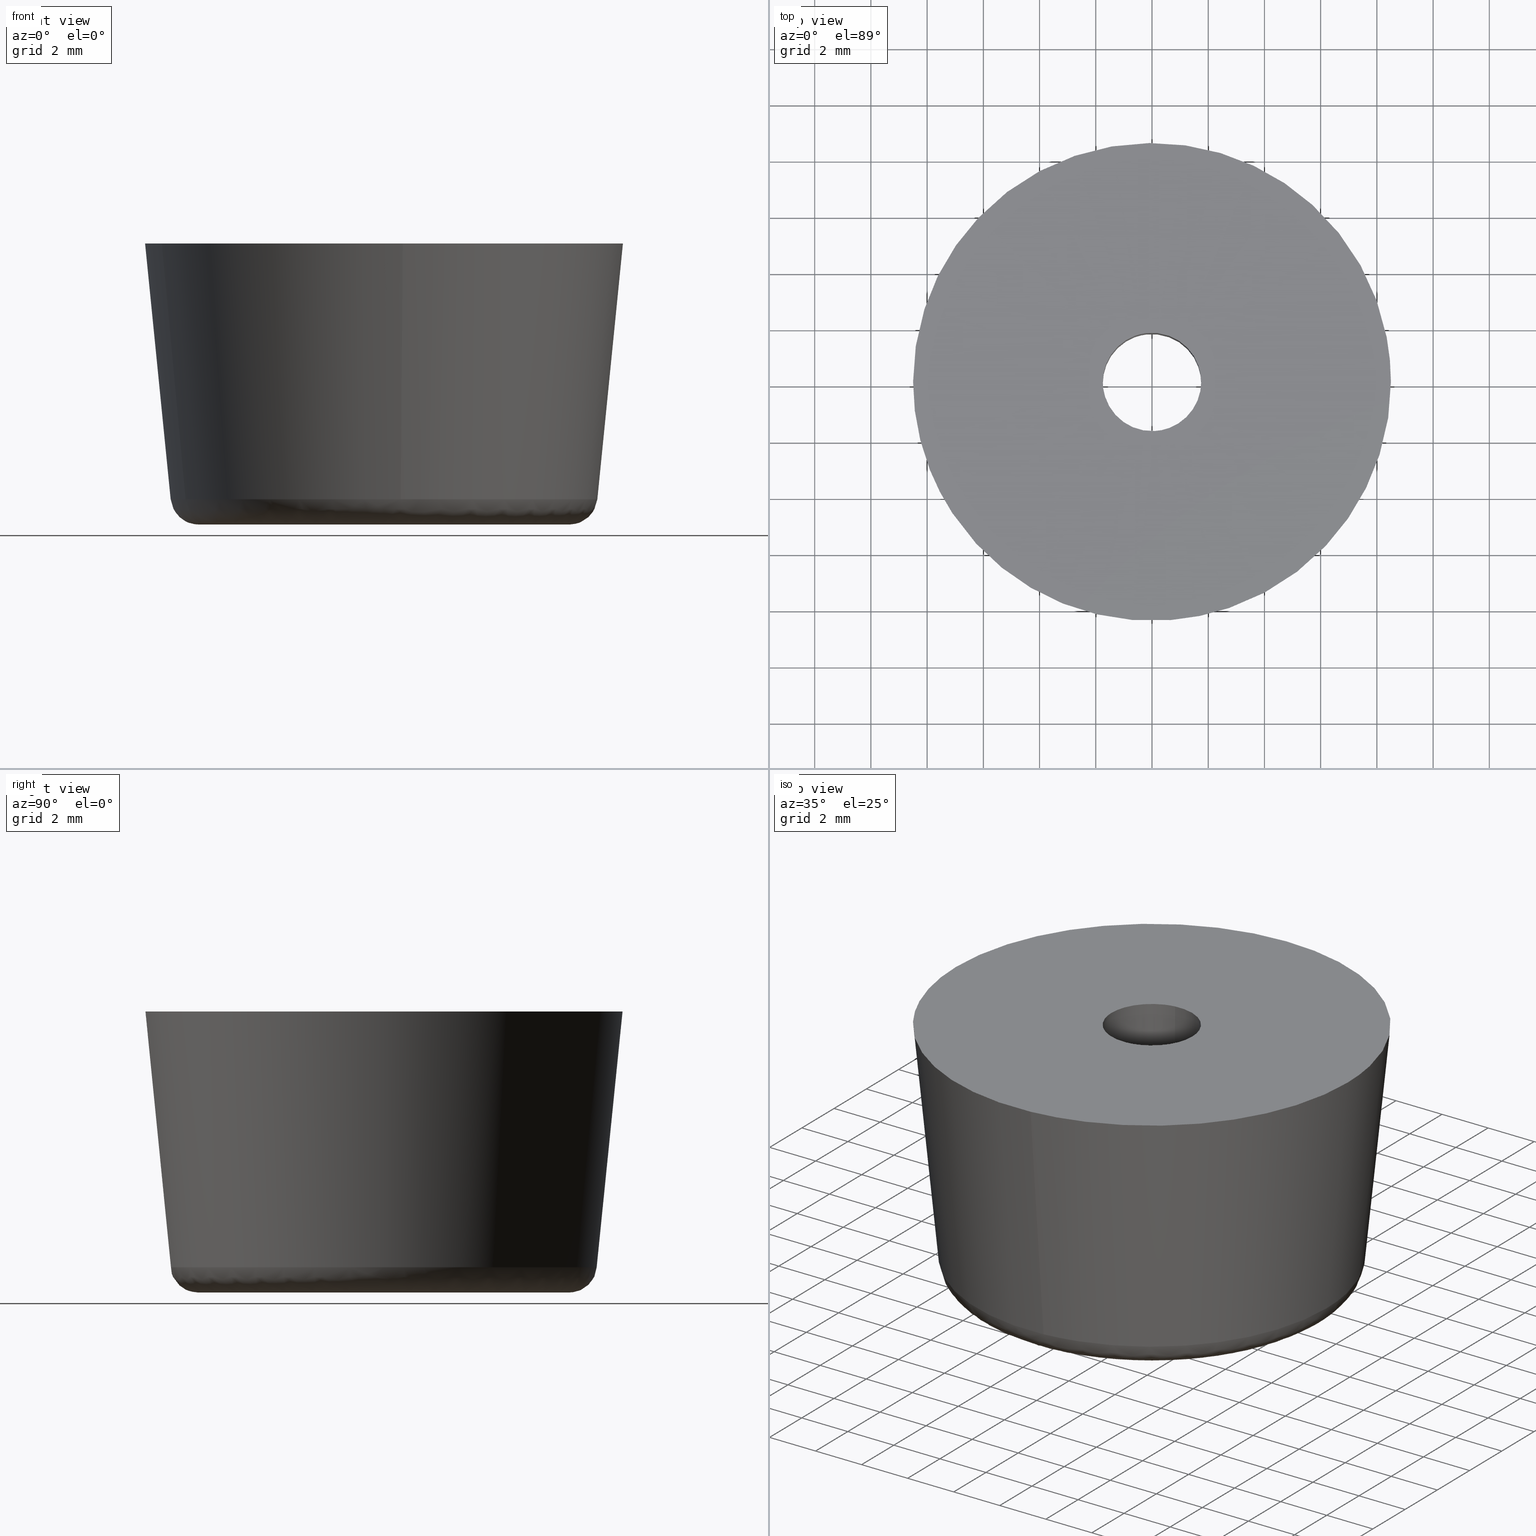
[diagram: canonical four-view strip — front | top / right | iso, engineering-drawing reading convention]
A machine part, canonical four-view strip (front | top / right | iso — engineering-drawing reading convention). The complete STEP part file that produces these views, byte-faithful:
ISO-10303-21;
HEADER;
/****************************************************************
 * Generated by software with PDE/Lib inside                    *
 * PDElib Version 4.4.1-0003, patched  Thursday August 19 11:58 *
 * International Technegroup Inc. (www.iti-oh.com)              *
 ****************************************************************/
FILE_DESCRIPTION((''),'2;1');
FILE_NAME('','2005-12-14T14:05:20',(''),(''),'','CADfix','');
FILE_SCHEMA(('AUTOMOTIVE_DESIGN'));
ENDSEC;
DATA;
#5=APPLICATION_CONTEXT('automotive design');
#6=APPLICATION_PROTOCOL_DEFINITION('Draft International Standard','automotive_design',1998,#5);
#7=PRODUCT_CONTEXT('None',#5,'mechanical');
#8=PRODUCT('rubber foot','','None',(#7));
#9=PRODUCT_RELATED_PRODUCT_CATEGORY('part','description',(#8));
#10=PRODUCT_DEFINITION_FORMATION('None','None',#8);
#11=PRODUCT_DEFINITION_CONTEXT('part definition',#5,'design');
#12=PRODUCT_DEFINITION('None','None',#10,#11);
#18=(NAMED_UNIT(*)PLANE_ANGLE_UNIT()SI_UNIT($,.RADIAN.));
#19=DIMENSIONAL_EXPONENTS(0.0,0.0,0.0,0.0,0.0,0.0,0.0);
#20=PLANE_ANGLE_MEASURE_WITH_UNIT(PLANE_ANGLE_MEASURE(0.017453292500000),#18);
#24=(CONVERSION_BASED_UNIT('DEGREE',#20)NAMED_UNIT(#19)PLANE_ANGLE_UNIT());
#28=(NAMED_UNIT(*)SI_UNIT($,.STERADIAN.)SOLID_ANGLE_UNIT());
#32=(LENGTH_UNIT()NAMED_UNIT(*)SI_UNIT(.MILLI.,.METRE.));
#34=UNCERTAINTY_MEASURE_WITH_UNIT(LENGTH_MEASURE(0.001000000000000),#32,'DISTANCE_ACCURACY_VALUE','');
#36=(GEOMETRIC_REPRESENTATION_CONTEXT(3)GLOBAL_UNCERTAINTY_ASSIGNED_CONTEXT((#34))GLOBAL_UNIT_ASSIGNED_CONTEXT((#24,#28,#32))REPRESENTATION_CONTEXT('None','None'));
#37=AXIS2_PLACEMENT_3D('',#38,#39,#40);
#38=CARTESIAN_POINT('',(0.0,0.0,0.0));
#39=DIRECTION('',(0.0,0.0,1.0));
#40=DIRECTION('',(1.0,0.0,0.0));
#41=ADVANCED_BREP_SHAPE_REPRESENTATION('',(#37,#837),#36);
#42=PRODUCT_DEFINITION_SHAPE('','',#12);
#43=SHAPE_DEFINITION_REPRESENTATION(#42,#41);
#44=CARTESIAN_POINT('',(-7.036564186098089,-2.784028136203508,0.673008399999975));
#45=CARTESIAN_POINT('',(-4.979734987079021,-7.982614490461692,0.673008399999975));
#46=CARTESIAN_POINT('',(0.593723613175193,-7.543973785705333,0.673008399999975));
#47=CARTESIAN_POINT('',(-7.925529652642115,-3.135748777914050,10.233174790000000));
#48=CARTESIAN_POINT('',(-5.608850606432031,-8.991099374146007,10.233174790000001));
#49=CARTESIAN_POINT('',(0.668731781199475,-8.497042925507243,10.233174790000000));
#57=(BOUNDED_SURFACE()B_SPLINE_SURFACE(2,1,((#44,#47),(#45,#48),(#46,#49)),.UNSPECIFIED.,.F.,.F.,.U.)B_SPLINE_SURFACE_WITH_KNOTS((3,3),(2,2),(0.0,11.220510405016700),(0.0,9.607848271855632),.UNSPECIFIED.)GEOMETRIC_REPRESENTATION_ITEM()RATIONAL_B_SPLINE_SURFACE(((0.906274169979695,0.906274169979695),(0.765685424949238,0.765685424949238),(1.0,1.0)))REPRESENTATION_ITEM('')SURFACE());
#58=CARTESIAN_POINT('',(0.595502299639460,-7.566652729299925,0.900494361166925));
#59=VERTEX_POINT('',#58);
#60=CARTESIAN_POINT('',(-7.057718579691434,-2.792394120895210,0.900494336007843));
#61=VERTEX_POINT('',#60);
#62=CARTESIAN_POINT('',(0.595502299639460,-7.566652729299925,0.900494361166925));
#63=CARTESIAN_POINT('',(0.298210780512778,-7.590049839335957,0.900494360497936));
#64=CARTESIAN_POINT('',(-3.701196E-009,-7.590049842201561,0.900494359792231));
#65=CARTESIAN_POINT('',(-5.159520854105500,-7.590049891781074,0.900494347582419));
#66=CARTESIAN_POINT('',(-7.057718579691434,-2.792394120895211,0.900494336007843));
#74=(BOUNDED_CURVE()B_SPLINE_CURVE(2,(#62,#63,#64,#65,#66),.UNSPECIFIED.,.F.,.U.)B_SPLINE_CURVE_WITH_KNOTS((3,2,3),(0.736331439895390,0.750000000000000,0.937532622925810),.UNSPECIFIED.)CURVE()GEOMETRIC_REPRESENTATION_ITEM()RATIONAL_B_SPLINE_CURVE((0.969723646802467,0.983986285737662,1.0,0.780291865754920,0.890203273054767))REPRESENTATION_ITEM(''));
#75=EDGE_CURVE('',#59,#61,#74,.T.);
#76=ORIENTED_EDGE('',*,*,#75,.F.);
#77=CARTESIAN_POINT('',(0.666897430078629,-8.473797589413332,9.999998687420924));
#78=VERTEX_POINT('',#77);
#79=CARTESIAN_POINT('',(0.595502299639460,-7.566652729299925,0.900494361166925));
#80=CARTESIAN_POINT('',(0.666897430078629,-8.473797589413332,9.999998687420924));
#81=QUASI_UNIFORM_CURVE('',1,(#79,#80),.UNSPECIFIED.,.F.,.U.);
#82=EDGE_CURVE('',#59,#78,#81,.T.);
#83=ORIENTED_EDGE('',*,*,#82,.T.);
#84=CARTESIAN_POINT('',(-7.903848539507668,-3.127167380244424,9.999998564441299));
#85=VERTEX_POINT('',#84);
#86=CARTESIAN_POINT('',(0.666897430078629,-8.473797589413332,9.999998687420924));
#87=CARTESIAN_POINT('',(0.333963455127641,-8.499999871220485,9.999998684150841));
#88=CARTESIAN_POINT('',(-2.441890E-009,-8.499999873409490,9.999998680701287));
#89=CARTESIAN_POINT('',(-5.778080802938428,-8.499999911282620,9.999998621018747));
#90=CARTESIAN_POINT('',(-7.903848539507668,-3.127167380244425,9.999998564441299));
#98=(BOUNDED_CURVE()B_SPLINE_CURVE(2,(#86,#87,#88,#89,#90),.UNSPECIFIED.,.F.,.U.)B_SPLINE_CURVE_WITH_KNOTS((3,2,3),(0.736331399219582,0.750000000000000,0.937532605541042),.UNSPECIFIED.)CURVE()GEOMETRIC_REPRESENTATION_ITEM()RATIONAL_B_SPLINE_CURVE((0.969723561915069,0.983986238082989,1.0,0.780291886122443,0.890203252676616))REPRESENTATION_ITEM(''));
#99=EDGE_CURVE('',#78,#85,#98,.T.);
#100=ORIENTED_EDGE('',*,*,#99,.T.);
#101=CARTESIAN_POINT('',(-7.057718579691434,-2.792394120895210,0.900494336007843));
#102=CARTESIAN_POINT('',(-7.903848539507668,-3.127167380244424,9.999998564441299));
#103=QUASI_UNIFORM_CURVE('',1,(#101,#102),.UNSPECIFIED.,.F.,.U.);
#104=EDGE_CURVE('',#61,#85,#103,.T.);
#105=ORIENTED_EDGE('',*,*,#104,.F.);
#106=EDGE_LOOP('',(#76,#83,#100,#105));
#107=FACE_OUTER_BOUND('',#106,.T.);
#108=ADVANCED_FACE('',(#107),#57,.T.);
#109=CARTESIAN_POINT('',(0.593723613175193,-7.543973785705333,0.673008399999975));
#110=CARTESIAN_POINT('',(8.137697398880526,-6.950250172530140,0.673008399999975));
#111=CARTESIAN_POINT('',(7.543973785705333,0.593723613175193,0.673008399999975));
#112=CARTESIAN_POINT('',(6.950250172530140,8.137697398880526,0.673008399999975));
#113=CARTESIAN_POINT('',(-0.593723613175193,7.543973785705333,0.673008399999975));
#114=CARTESIAN_POINT('',(-8.137697398880526,6.950250172530140,0.673008399999975));
#115=CARTESIAN_POINT('',(-7.543973785705333,-0.593723613175193,0.673008399999975));
#116=CARTESIAN_POINT('',(-7.454783968575047,-1.726987690014580,0.673008399999975));
#117=CARTESIAN_POINT('',(-7.036564186098089,-2.784028136203508,0.673008399999975));
#118=CARTESIAN_POINT('',(0.668731781199475,-8.497042925507243,10.233174790000000));
#119=CARTESIAN_POINT('',(9.165774706706717,-7.828311144307768,10.233174790000003));
#120=CARTESIAN_POINT('',(8.497042925507243,0.668731781199475,10.233174790000000));
#121=CARTESIAN_POINT('',(7.828311144307768,9.165774706706717,10.233174790000003));
#122=CARTESIAN_POINT('',(-0.668731781199475,8.497042925507243,10.233174790000000));
#123=CARTESIAN_POINT('',(-9.165774706706717,7.828311144307768,10.233174790000003));
#124=CARTESIAN_POINT('',(-8.497042925507243,-0.668731781199475,10.233174790000000));
#125=CARTESIAN_POINT('',(-8.396585298505650,-1.945166957191977,10.233174790000001));
#126=CARTESIAN_POINT('',(-7.925529652642115,-3.135748777914050,10.233174790000000));
#134=(BOUNDED_SURFACE()B_SPLINE_SURFACE(2,1,((#109,#118),(#110,#119),(#111,#120),(#112,#121),(#113,#122),(#114,#123),(#115,#124),(#116,#125),(#117,#126)),.UNSPECIFIED.,.F.,.F.,.U.)B_SPLINE_SURFACE_WITH_KNOTS((3,2,2,2,3),(2,2),(0.0,14.121894767871080,28.243789535742160,42.365684303613243,45.190063257187447),(0.0,9.607848271855634),.UNSPECIFIED.)GEOMETRIC_REPRESENTATION_ITEM()RATIONAL_B_SPLINE_SURFACE(((1.0,1.0),(0.707106781186548,0.707106781186548),(1.0,1.0),(0.707106781186548,0.707106781186548),(1.0,1.0),(0.707106781186548,0.707106781186548),(1.0,1.0),(0.941421356237310,0.941421356237310),(0.906274169979695,0.906274169979695)))REPRESENTATION_ITEM('')SURFACE());
#135=CARTESIAN_POINT('',(-7.590050000000000,0.0,0.900495999999976));
#136=VERTEX_POINT('',#135);
#137=CARTESIAN_POINT('',(-7.057718579691434,-2.792394120895211,0.900494336007843));
#138=CARTESIAN_POINT('',(-7.590049922635279,-1.446937850936312,0.900495168003910));
#139=CARTESIAN_POINT('',(-7.590050000000000,0.0,0.900495999999976));
#147=(BOUNDED_CURVE()B_SPLINE_CURVE(2,(#137,#138,#139),.UNSPECIFIED.,.F.,.U.)B_SPLINE_CURVE_WITH_KNOTS((3,3),(0.937532622925810,1.0),.UNSPECIFIED.)CURVE()GEOMETRIC_REPRESENTATION_ITEM()RATIONAL_B_SPLINE_CURVE((0.890203273054767,0.926814915431628,1.0))REPRESENTATION_ITEM(''));
#148=EDGE_CURVE('',#61,#136,#147,.T.);
#149=ORIENTED_EDGE('',*,*,#148,.F.);
#150=ORIENTED_EDGE('',*,*,#104,.T.);
#151=CARTESIAN_POINT('',(-8.500000000000000,0.0,10.0));
#152=VERTEX_POINT('',#151);
#153=CARTESIAN_POINT('',(-7.903848539507668,-3.127167380244425,9.999998564441299));
#154=CARTESIAN_POINT('',(-8.499999933256024,-1.620407702954398,9.999999282220649));
#155=CARTESIAN_POINT('',(-8.500000000000000,0.0,10.0));
#163=(BOUNDED_CURVE()B_SPLINE_CURVE(2,(#153,#154,#155),.UNSPECIFIED.,.F.,.U.)B_SPLINE_CURVE_WITH_KNOTS((3,3),(0.937532605541042,1.0),.UNSPECIFIED.)CURVE()GEOMETRIC_REPRESENTATION_ITEM()RATIONAL_B_SPLINE_CURVE((0.890203252676616,0.926814895064105,1.0))REPRESENTATION_ITEM(''));
#164=EDGE_CURVE('',#85,#152,#163,.T.);
#165=ORIENTED_EDGE('',*,*,#164,.T.);
#166=CARTESIAN_POINT('',(8.500000000000000,0.0,10.0));
#167=VERTEX_POINT('',#166);
#168=CARTESIAN_POINT('',(-8.500000000000000,0.0,10.0));
#169=CARTESIAN_POINT('',(-8.500000000000002,8.500000000000002,10.000000000000002));
#170=CARTESIAN_POINT('',(0.0,8.500000000000000,10.0));
#171=CARTESIAN_POINT('',(8.500000000000002,8.500000000000002,10.000000000000002));
#172=CARTESIAN_POINT('',(8.500000000000000,0.0,10.0));
#180=(BOUNDED_CURVE()B_SPLINE_CURVE(2,(#168,#169,#170,#171,#172),.UNSPECIFIED.,.F.,.U.)B_SPLINE_CURVE_WITH_KNOTS((3,2,3),(0.0,0.250000000000000,0.500000000000000),.UNSPECIFIED.)CURVE()GEOMETRIC_REPRESENTATION_ITEM()RATIONAL_B_SPLINE_CURVE((1.0,0.707106781186548,1.0,0.707106781186548,1.0))REPRESENTATION_ITEM(''));
#181=EDGE_CURVE('',#152,#167,#180,.T.);
#182=ORIENTED_EDGE('',*,*,#181,.T.);
#183=CARTESIAN_POINT('',(8.500000000000000,0.0,10.0));
#184=CARTESIAN_POINT('',(8.499999994850796,-7.857323646412445,9.999999343710460));
#185=CARTESIAN_POINT('',(0.666897430078629,-8.473797589413332,9.999998687420924));
#193=(BOUNDED_CURVE()B_SPLINE_CURVE(2,(#183,#184,#185),.UNSPECIFIED.,.F.,.U.)B_SPLINE_CURVE_WITH_KNOTS((3,3),(0.500000000000000,0.736331399219582),.UNSPECIFIED.)CURVE()GEOMETRIC_REPRESENTATION_ITEM()RATIONAL_B_SPLINE_CURVE((1.0,0.723120543103558,0.969723561915069))REPRESENTATION_ITEM(''));
#194=EDGE_CURVE('',#167,#78,#193,.T.);
#195=ORIENTED_EDGE('',*,*,#194,.T.);
#196=ORIENTED_EDGE('',*,*,#82,.F.);
#197=CARTESIAN_POINT('',(7.590050000000000,0.0,0.900495999999976));
#198=VERTEX_POINT('',#197);
#199=CARTESIAN_POINT('',(7.590050000000000,0.0,0.900495999999976));
#200=CARTESIAN_POINT('',(7.590049993570903,-7.016175686975174,0.900495180583450));
#201=CARTESIAN_POINT('',(0.595502299639460,-7.566652729299925,0.900494361166925));
#209=(BOUNDED_CURVE()B_SPLINE_CURVE(2,(#199,#200,#201),.UNSPECIFIED.,.F.,.U.)B_SPLINE_CURVE_WITH_KNOTS((3,3),(0.500000000000000,0.736331439895390),.UNSPECIFIED.)CURVE()GEOMETRIC_REPRESENTATION_ITEM()RATIONAL_B_SPLINE_CURVE((1.0,0.723120495448885,0.969723646802467))REPRESENTATION_ITEM(''));
#210=EDGE_CURVE('',#198,#59,#209,.T.);
#211=ORIENTED_EDGE('',*,*,#210,.F.);
#212=CARTESIAN_POINT('',(0.571734188844041,7.568485494738575,0.900496015726226));
#213=VERTEX_POINT('',#212);
#214=CARTESIAN_POINT('',(0.571734188844041,7.568485494738575,0.900496015726226));
#215=CARTESIAN_POINT('',(7.590050000000000,7.038312327046833,0.900495999999976));
#216=CARTESIAN_POINT('',(7.590050000000000,0.0,0.900495999999976));
#224=(BOUNDED_CURVE()B_SPLINE_CURVE(2,(#214,#215,#216),.UNSPECIFIED.,.F.,.U.)B_SPLINE_CURVE_WITH_KNOTS((3,3),(0.263129840737018,0.500000000000000),.UNSPECIFIED.)CURVE()GEOMETRIC_REPRESENTATION_ITEM()RATIONAL_B_SPLINE_CURVE((0.970850634528547,0.722489346450440,1.0))REPRESENTATION_ITEM(''));
#225=EDGE_CURVE('',#213,#198,#224,.T.);
#226=ORIENTED_EDGE('',*,*,#225,.F.);
#227=CARTESIAN_POINT('',(-7.568485494738667,0.571734188842882,0.900496015726277));
#228=VERTEX_POINT('',#227);
#229=CARTESIAN_POINT('',(-7.568485494738667,0.571734188842882,0.900496015726277));
#230=CARTESIAN_POINT('',(-7.038312327048996,7.590050000000000,0.900495999999976));
#231=CARTESIAN_POINT('',(0.0,7.590050000000000,0.900495999999976));
#232=CARTESIAN_POINT('',(0.286273776310240,7.590050000000001,0.900495999999976));
#233=CARTESIAN_POINT('',(0.571734188844041,7.568485494738575,0.900496015726226));
#241=(BOUNDED_CURVE()B_SPLINE_CURVE(2,(#229,#230,#231,#232,#233),.UNSPECIFIED.,.F.,.U.)B_SPLINE_CURVE_WITH_KNOTS((3,2,3),(0.013129840736966,0.250000000000000,0.263129840737018),.UNSPECIFIED.)CURVE()GEOMETRIC_REPRESENTATION_ITEM()RATIONAL_B_SPLINE_CURVE((0.970850634528658,0.722489346450379,1.0,0.984617434736107,0.970850634528548))REPRESENTATION_ITEM(''));
#242=EDGE_CURVE('',#228,#213,#241,.T.);
#243=ORIENTED_EDGE('',*,*,#242,.F.);
#244=CARTESIAN_POINT('',(-7.590050000000000,0.0,0.900495999999976));
#245=CARTESIAN_POINT('',(-7.590050000000000,0.286273776309077,0.900495999999976));
#246=CARTESIAN_POINT('',(-7.568485494738667,0.571734188842882,0.900496015726277));
#254=(BOUNDED_CURVE()B_SPLINE_CURVE(2,(#244,#245,#246),.UNSPECIFIED.,.F.,.U.)B_SPLINE_CURVE_WITH_KNOTS((3,3),(0.0,0.013129840736966),.UNSPECIFIED.)CURVE()GEOMETRIC_REPRESENTATION_ITEM()RATIONAL_B_SPLINE_CURVE((1.0,0.984617434736169,0.970850634528658))REPRESENTATION_ITEM(''));
#255=EDGE_CURVE('',#136,#228,#254,.T.);
#256=ORIENTED_EDGE('',*,*,#255,.F.);
#257=EDGE_LOOP('',(#149,#150,#165,#182,#195,#196,#211,#226,#243,#256));
#258=FACE_OUTER_BOUND('',#257,.T.);
#259=ADVANCED_FACE('',(#258),#134,.T.);
#260=CARTESIAN_POINT('',(-0.206559910649327,1.737766671136416,10.075000000000001));
#261=CARTESIAN_POINT('',(-0.156825775116461,1.743678327035060,10.074999999999999));
#262=CARTESIAN_POINT('',(-0.106834944186000,1.746735897238267,10.074999999999999));
#263=CARTESIAN_POINT('',(1.639900953052267,1.853570841424267,10.075000000000001));
#264=CARTESIAN_POINT('',(1.746735897238267,0.106834944186000,10.074999999999999));
#265=CARTESIAN_POINT('',(1.853570841424267,-1.639900953052267,10.075000000000001));
#266=CARTESIAN_POINT('',(0.106834944186000,-1.746735897238267,10.074999999999999));
#267=CARTESIAN_POINT('',(-0.206559910649327,1.737766671136416,6.923125000000000));
#268=CARTESIAN_POINT('',(-0.156825775116461,1.743678327035060,6.923124999999999));
#269=CARTESIAN_POINT('',(-0.106834944186000,1.746735897238267,6.923124999999999));
#270=CARTESIAN_POINT('',(1.639900953052267,1.853570841424267,6.923124999999999));
#271=CARTESIAN_POINT('',(1.746735897238267,0.106834944186000,6.923124999999999));
#272=CARTESIAN_POINT('',(1.853570841424267,-1.639900953052267,6.923124999999999));
#273=CARTESIAN_POINT('',(0.106834944186000,-1.746735897238267,6.923124999999999));
#281=(BOUNDED_SURFACE()B_SPLINE_SURFACE(2,1,((#260,#267),(#261,#268),(#262,#269),(#263,#270),(#264,#271),(#265,#272),(#266,#273)),.UNSPECIFIED.,.F.,.F.,.U.)B_SPLINE_SURFACE_WITH_KNOTS((3,2,2,3),(2,2),(3.078760800517997,3.141592653589793,4.712388980384690,6.283185307179586),(0.0,3.151875000000002),.UNSPECIFIED.)GEOMETRIC_REPRESENTATION_ITEM()RATIONAL_B_SPLINE_SURFACE(((0.977505800795127,0.977505800795127),(0.988284271247462,0.988284271247462),(1.0,1.0),(0.707106781186548,0.707106781186548),(1.0,1.0),(0.707106781186548,0.707106781186548),(1.0,1.0)))REPRESENTATION_ITEM('')SURFACE());
#282=CARTESIAN_POINT('',(-0.206559910658016,1.737766671135383,10.0));
#283=VERTEX_POINT('',#282);
#284=CARTESIAN_POINT('',(1.750000000000000,0.0,10.0));
#285=VERTEX_POINT('',#284);
#286=CARTESIAN_POINT('',(-0.206559910658016,1.737766671135384,10.0));
#287=CARTESIAN_POINT('',(-0.103642209399623,1.750000000000000,10.000000000000002));
#288=CARTESIAN_POINT('',(0.0,1.750000000000000,10.0));
#289=CARTESIAN_POINT('',(1.750000000000000,1.750000000000000,10.0));
#290=CARTESIAN_POINT('',(1.750000000000000,0.0,10.0));
#298=(BOUNDED_CURVE()B_SPLINE_CURVE(2,(#286,#287,#288,#289,#290),.UNSPECIFIED.,.F.,.U.)B_SPLINE_CURVE_WITH_KNOTS((3,2,3),(0.229562473513954,0.250000000000000,0.500000000000000),.UNSPECIFIED.)CURVE()GEOMETRIC_REPRESENTATION_ITEM()RATIONAL_B_SPLINE_CURVE((0.956026754184573,0.976055948331668,1.0,0.707106781186547,1.0))REPRESENTATION_ITEM(''));
#299=EDGE_CURVE('',#283,#285,#298,.T.);
#300=ORIENTED_EDGE('',*,*,#299,.F.);
#301=CARTESIAN_POINT('',(-0.206559910658016,1.737766671135383,7.0));
#302=VERTEX_POINT('',#301);
#303=CARTESIAN_POINT('',(-0.206559910658016,1.737766671135383,10.0));
#304=CARTESIAN_POINT('',(-0.206559910658016,1.737766671135383,7.0));
#305=QUASI_UNIFORM_CURVE('',1,(#303,#304),.UNSPECIFIED.,.F.,.U.);
#306=EDGE_CURVE('',#283,#302,#305,.T.);
#307=ORIENTED_EDGE('',*,*,#306,.T.);
#308=CARTESIAN_POINT('',(1.750000000000000,0.0,7.0));
#309=VERTEX_POINT('',#308);
#310=CARTESIAN_POINT('',(-0.206559910658016,1.737766671135384,7.0));
#311=CARTESIAN_POINT('',(-0.103642209399623,1.750000000000000,6.999999999999999));
#312=CARTESIAN_POINT('',(0.0,1.750000000000000,7.0));
#313=CARTESIAN_POINT('',(1.750000000000000,1.750000000000000,6.999999999999999));
#314=CARTESIAN_POINT('',(1.750000000000000,0.0,7.0));
#322=(BOUNDED_CURVE()B_SPLINE_CURVE(2,(#310,#311,#312,#313,#314),.UNSPECIFIED.,.F.,.U.)B_SPLINE_CURVE_WITH_KNOTS((3,2,3),(0.229562473513954,0.250000000000000,0.500000000000000),.UNSPECIFIED.)CURVE()GEOMETRIC_REPRESENTATION_ITEM()RATIONAL_B_SPLINE_CURVE((0.956026754184573,0.976055948331668,1.0,0.707106781186547,1.0))REPRESENTATION_ITEM(''));
#323=EDGE_CURVE('',#302,#309,#322,.T.);
#324=ORIENTED_EDGE('',*,*,#323,.T.);
#325=CARTESIAN_POINT('',(0.106832578854710,-1.746736041904911,7.0));
#326=VERTEX_POINT('',#325);
#327=CARTESIAN_POINT('',(1.750000000000000,0.0,7.0));
#328=CARTESIAN_POINT('',(1.750000000000000,-1.646237850491430,6.999999999999999));
#329=CARTESIAN_POINT('',(0.106832578854710,-1.746736041904911,7.0));
#337=(BOUNDED_CURVE()B_SPLINE_CURVE(2,(#327,#328,#329),.UNSPECIFIED.,.F.,.U.)B_SPLINE_CURVE_WITH_KNOTS((3,3),(0.500000000000000,0.739333195895145),.UNSPECIFIED.)CURVE()GEOMETRIC_REPRESENTATION_ITEM()RATIONAL_B_SPLINE_CURVE((1.0,0.719603719541441,0.976072542436950))REPRESENTATION_ITEM(''));
#338=EDGE_CURVE('',#309,#326,#337,.T.);
#339=ORIENTED_EDGE('',*,*,#338,.T.);
#340=CARTESIAN_POINT('',(0.106832550060752,-1.746736043665946,9.999999999999979));
#341=VERTEX_POINT('',#340);
#342=CARTESIAN_POINT('',(0.106832550060752,-1.746736043665946,9.999999999999979));
#343=CARTESIAN_POINT('',(0.106832578854710,-1.746736041904911,7.0));
#344=QUASI_UNIFORM_CURVE('',1,(#342,#343),.UNSPECIFIED.,.F.,.U.);
#345=EDGE_CURVE('',#341,#326,#344,.T.);
#346=ORIENTED_EDGE('',*,*,#345,.F.);
#347=CARTESIAN_POINT('',(1.750000000000000,0.0,10.0));
#348=CARTESIAN_POINT('',(1.749999999999999,-1.646237877679438,9.999999999999998));
#349=CARTESIAN_POINT('',(0.106832550060752,-1.746736043665946,9.999999999999979));
#357=(BOUNDED_CURVE()B_SPLINE_CURVE(2,(#347,#348,#349),.UNSPECIFIED.,.F.,.U.)B_SPLINE_CURVE_WITH_KNOTS((3,3),(0.500000000000000,0.739333198739483),.UNSPECIFIED.)CURVE()GEOMETRIC_REPRESENTATION_ITEM()RATIONAL_B_SPLINE_CURVE((1.0,0.719603716209092,0.976072548532919))REPRESENTATION_ITEM(''));
#358=EDGE_CURVE('',#285,#341,#357,.T.);
#359=ORIENTED_EDGE('',*,*,#358,.F.);
#360=EDGE_LOOP('',(#300,#307,#324,#339,#346,#359));
#361=FACE_OUTER_BOUND('',#360,.T.);
#362=ADVANCED_FACE('',(#361),#281,.F.);
#363=CARTESIAN_POINT('',(0.106834944186000,-1.746735897238267,10.074999999999999));
#364=CARTESIAN_POINT('',(-1.639900953052267,-1.853570841424267,10.075000000000001));
#365=CARTESIAN_POINT('',(-1.746735897238267,-0.106834944186000,10.074999999999999));
#366=CARTESIAN_POINT('',(-1.847625844281923,1.542701108969127,10.074999999999999));
#367=CARTESIAN_POINT('',(-0.206559910649327,1.737766671136416,10.075000000000001));
#368=CARTESIAN_POINT('',(0.106834944186000,-1.746735897238267,6.923124999999999));
#369=CARTESIAN_POINT('',(-1.639900953052267,-1.853570841424267,6.923124999999999));
#370=CARTESIAN_POINT('',(-1.746735897238267,-0.106834944186000,6.923124999999999));
#371=CARTESIAN_POINT('',(-1.847625844281923,1.542701108969127,6.923124999999999));
#372=CARTESIAN_POINT('',(-0.206559910649327,1.737766671136416,6.923125000000000));
#380=(BOUNDED_SURFACE()B_SPLINE_SURFACE(2,1,((#363,#368),(#364,#369),(#365,#370),(#366,#371),(#367,#372)),.UNSPECIFIED.,.F.,.F.,.U.)B_SPLINE_SURFACE_WITH_KNOTS((3,2,3),(2,2),(0.0,1.570796326794897,3.078760800517997),(0.0,3.151875000000001),.UNSPECIFIED.)GEOMETRIC_REPRESENTATION_ITEM()RATIONAL_B_SPLINE_SURFACE(((1.0,1.0),(0.707106781186548,0.707106781186548),(1.0,1.0),(0.718822509939086,0.718822509939086),(0.977505800795127,0.977505800795127)))REPRESENTATION_ITEM('')SURFACE());
#381=CARTESIAN_POINT('',(-1.750000000000000,0.0,10.0));
#382=VERTEX_POINT('',#381);
#383=CARTESIAN_POINT('',(-1.750000000000000,0.0,10.0));
#384=CARTESIAN_POINT('',(-1.750000000000001,1.554305420399242,10.000000000000002));
#385=CARTESIAN_POINT('',(-0.206559910658016,1.737766671135384,10.000000000000002));
#393=(BOUNDED_CURVE()B_SPLINE_CURVE(2,(#383,#384,#385),.UNSPECIFIED.,.F.,.U.)B_SPLINE_CURVE_WITH_KNOTS((3,3),(0.0,0.229562473513954),.UNSPECIFIED.)CURVE()GEOMETRIC_REPRESENTATION_ITEM()RATIONAL_B_SPLINE_CURVE((1.0,0.731050832854880,0.956026754184574))REPRESENTATION_ITEM(''));
#394=EDGE_CURVE('',#382,#283,#393,.T.);
#395=ORIENTED_EDGE('',*,*,#394,.F.);
#396=CARTESIAN_POINT('',(0.106832550060752,-1.746736043665946,9.999999999999979));
#397=CARTESIAN_POINT('',(0.053466135353585,-1.750000000000000,10.000000000000002));
#398=CARTESIAN_POINT('',(0.0,-1.750000000000000,10.0));
#399=CARTESIAN_POINT('',(-1.750000000000000,-1.750000000000000,10.0));
#400=CARTESIAN_POINT('',(-1.750000000000000,0.0,10.0));
#408=(BOUNDED_CURVE()B_SPLINE_CURVE(2,(#396,#397,#398,#399,#400),.UNSPECIFIED.,.F.,.U.)B_SPLINE_CURVE_WITH_KNOTS((3,2,3),(0.739333198739483,0.750000000000000,1.0),.UNSPECIFIED.)CURVE()GEOMETRIC_REPRESENTATION_ITEM()RATIONAL_B_SPLINE_CURVE((0.976072548532919,0.987503064977455,1.0,0.707106781186547,1.0))REPRESENTATION_ITEM(''));
#409=EDGE_CURVE('',#341,#382,#408,.T.);
#410=ORIENTED_EDGE('',*,*,#409,.F.);
#411=ORIENTED_EDGE('',*,*,#345,.T.);
#412=CARTESIAN_POINT('',(-1.750000000000000,0.0,7.0));
#413=VERTEX_POINT('',#412);
#414=CARTESIAN_POINT('',(0.106832578854710,-1.746736041904911,7.0));
#415=CARTESIAN_POINT('',(0.053466149790929,-1.750000000000000,7.0));
#416=CARTESIAN_POINT('',(0.0,-1.750000000000000,7.0));
#417=CARTESIAN_POINT('',(-1.750000000000000,-1.750000000000000,6.999999999999999));
#418=CARTESIAN_POINT('',(-1.750000000000000,0.0,7.0));
#426=(BOUNDED_CURVE()B_SPLINE_CURVE(2,(#414,#415,#416,#417,#418),.UNSPECIFIED.,.F.,.U.)B_SPLINE_CURVE_WITH_KNOTS((3,2,3),(0.739333195895145,0.750000000000000,1.0),.UNSPECIFIED.)CURVE()GEOMETRIC_REPRESENTATION_ITEM()RATIONAL_B_SPLINE_CURVE((0.976072542436950,0.987503061645106,1.0,0.707106781186547,1.0))REPRESENTATION_ITEM(''));
#427=EDGE_CURVE('',#326,#413,#426,.T.);
#428=ORIENTED_EDGE('',*,*,#427,.T.);
#429=CARTESIAN_POINT('',(-1.750000000000000,0.0,7.0));
#430=CARTESIAN_POINT('',(-1.750000000000001,1.554305420399242,7.0));
#431=CARTESIAN_POINT('',(-0.206559910658016,1.737766671135384,6.999999999999999));
#439=(BOUNDED_CURVE()B_SPLINE_CURVE(2,(#429,#430,#431),.UNSPECIFIED.,.F.,.U.)B_SPLINE_CURVE_WITH_KNOTS((3,3),(0.0,0.229562473513954),.UNSPECIFIED.)CURVE()GEOMETRIC_REPRESENTATION_ITEM()RATIONAL_B_SPLINE_CURVE((1.0,0.731050832854880,0.956026754184574))REPRESENTATION_ITEM(''));
#440=EDGE_CURVE('',#413,#302,#439,.T.);
#441=ORIENTED_EDGE('',*,*,#440,.T.);
#442=ORIENTED_EDGE('',*,*,#306,.F.);
#443=EDGE_LOOP('',(#395,#410,#411,#428,#441,#442));
#444=FACE_OUTER_BOUND('',#443,.T.);
#445=ADVANCED_FACE('',(#444),#380,.F.);
#446=CARTESIAN_POINT('',(-0.590171173283792,4.965047631818332,7.175000000000001));
#447=CARTESIAN_POINT('',(-0.448073643189888,4.981938077243028,7.175000000000001));
#448=CARTESIAN_POINT('',(-0.305242697674285,4.990673992109334,7.175000000000001));
#449=CARTESIAN_POINT('',(4.685431294435048,5.295916689783620,7.175000000000001));
#450=CARTESIAN_POINT('',(4.990673992109334,0.305242697674285,7.175000000000001));
#451=CARTESIAN_POINT('',(5.295916689783620,-4.685431294435048,7.175000000000001));
#452=CARTESIAN_POINT('',(0.305242697674285,-4.990673992109334,7.175000000000001));
#453=CARTESIAN_POINT('',(-0.590171173283792,4.965047631818332,-0.179375000000000));
#454=CARTESIAN_POINT('',(-0.448073643189888,4.981938077243028,-0.179375000000000));
#455=CARTESIAN_POINT('',(-0.305242697674285,4.990673992109334,-0.179375000000000));
#456=CARTESIAN_POINT('',(4.685431294435048,5.295916689783620,-0.179375000000000));
#457=CARTESIAN_POINT('',(4.990673992109334,0.305242697674285,-0.179375000000000));
#458=CARTESIAN_POINT('',(5.295916689783620,-4.685431294435048,-0.179375000000000));
#459=CARTESIAN_POINT('',(0.305242697674285,-4.990673992109334,-0.179375000000000));
#467=(BOUNDED_SURFACE()B_SPLINE_SURFACE(2,1,((#446,#453),(#447,#454),(#448,#455),(#449,#456),(#450,#457),(#451,#458),(#452,#459)),.UNSPECIFIED.,.F.,.F.,.U.)B_SPLINE_SURFACE_WITH_KNOTS((3,2,2,3),(2,2),(0.0,0.331370849898476,8.615642097360375,16.899913344822270),(0.0,7.354375000000001),.UNSPECIFIED.)GEOMETRIC_REPRESENTATION_ITEM()RATIONAL_B_SPLINE_SURFACE(((0.977505800795127,0.977505800795127),(0.988284271247462,0.988284271247462),(1.0,1.0),(0.707106781186548,0.707106781186548),(1.0,1.0),(0.707106781186548,0.707106781186548),(1.0,1.0)))REPRESENTATION_ITEM('')SURFACE());
#468=CARTESIAN_POINT('',(-0.590165331401785,4.965048326207590,4.031988E-015));
#469=VERTEX_POINT('',#468);
#470=CARTESIAN_POINT('',(5.0,0.0,0.0));
#471=VERTEX_POINT('',#470);
#472=CARTESIAN_POINT('',(-0.590165331401785,4.965048326207590,4.031988E-015));
#473=CARTESIAN_POINT('',(-0.296117646439247,5.0,0.0));
#474=CARTESIAN_POINT('',(0.0,5.0,0.0));
#475=CARTESIAN_POINT('',(5.000000000000001,5.000000000000001,0.0));
#476=CARTESIAN_POINT('',(5.0,0.0,0.0));
#484=(BOUNDED_CURVE()B_SPLINE_CURVE(2,(#472,#473,#474,#475,#476),.UNSPECIFIED.,.F.,.U.)B_SPLINE_CURVE_WITH_KNOTS((3,2,3),(0.229562672365118,0.250000000000000,0.500000000000000),.UNSPECIFIED.)CURVE()GEOMETRIC_REPRESENTATION_ITEM()RATIONAL_B_SPLINE_CURVE((0.956027143941363,0.976056181300297,1.0,0.707106781186548,1.0))REPRESENTATION_ITEM(''));
#485=EDGE_CURVE('',#469,#471,#484,.T.);
#486=ORIENTED_EDGE('',*,*,#485,.T.);
#487=CARTESIAN_POINT('',(0.305236716672421,-4.990674357915885,-7.813195E-015));
#488=VERTEX_POINT('',#487);
#489=CARTESIAN_POINT('',(5.0,0.0,0.0));
#490=CARTESIAN_POINT('',(4.999999999999999,-4.703535981943459,0.0));
#491=CARTESIAN_POINT('',(0.305236716672421,-4.990674357915885,-7.813195E-015));
#499=(BOUNDED_CURVE()B_SPLINE_CURVE(2,(#489,#490,#491),.UNSPECIFIED.,.F.,.U.)B_SPLINE_CURVE_WITH_KNOTS((3,3),(0.500000000000000,0.739333169028232),.UNSPECIFIED.)CURVE()GEOMETRIC_REPRESENTATION_ITEM()RATIONAL_B_SPLINE_CURVE((1.0,0.719603751017988,0.976072484855930))REPRESENTATION_ITEM(''));
#500=EDGE_CURVE('',#471,#488,#499,.T.);
#501=ORIENTED_EDGE('',*,*,#500,.T.);
#502=CARTESIAN_POINT('',(0.305236790486046,-4.990674353401427,7.0));
#503=VERTEX_POINT('',#502);
#504=CARTESIAN_POINT('',(0.305236790486046,-4.990674353401427,7.0));
#505=CARTESIAN_POINT('',(0.305236716672421,-4.990674357915885,-7.813195E-015));
#506=QUASI_UNIFORM_CURVE('',1,(#504,#505),.UNSPECIFIED.,.F.,.U.);
#507=EDGE_CURVE('',#503,#488,#506,.T.);
#508=ORIENTED_EDGE('',*,*,#507,.F.);
#509=CARTESIAN_POINT('',(5.0,0.0,7.0));
#510=VERTEX_POINT('',#509);
#511=CARTESIAN_POINT('',(5.0,0.0,7.0));
#512=CARTESIAN_POINT('',(5.0,-4.703535912246712,6.999999999999999));
#513=CARTESIAN_POINT('',(0.305236790486046,-4.990674353401427,7.0));
#521=(BOUNDED_CURVE()B_SPLINE_CURVE(2,(#511,#512,#513),.UNSPECIFIED.,.F.,.U.)B_SPLINE_CURVE_WITH_KNOTS((3,3),(0.500000000000000,0.739333166476211),.UNSPECIFIED.)CURVE()GEOMETRIC_REPRESENTATION_ITEM()RATIONAL_B_SPLINE_CURVE((1.0,0.719603754007867,0.976072479386452))REPRESENTATION_ITEM(''));
#522=EDGE_CURVE('',#510,#503,#521,.T.);
#523=ORIENTED_EDGE('',*,*,#522,.F.);
#524=CARTESIAN_POINT('',(-0.590165403473845,4.965048317640905,7.0));
#525=VERTEX_POINT('',#524);
#526=CARTESIAN_POINT('',(-0.590165403473845,4.965048317640905,7.000000000000001));
#527=CARTESIAN_POINT('',(-0.296117682856233,5.0,7.000000000000001));
#528=CARTESIAN_POINT('',(0.0,5.0,7.0));
#529=CARTESIAN_POINT('',(5.000000000000001,5.000000000000001,6.999999999999999));
#530=CARTESIAN_POINT('',(5.0,0.0,7.0));
#538=(BOUNDED_CURVE()B_SPLINE_CURVE(2,(#526,#527,#528,#529,#530),.UNSPECIFIED.,.F.,.U.)B_SPLINE_CURVE_WITH_KNOTS((3,2,3),(0.229562669911886,0.250000000000000,0.500000000000000),.UNSPECIFIED.)CURVE()GEOMETRIC_REPRESENTATION_ITEM()RATIONAL_B_SPLINE_CURVE((0.956027139132919,0.976056178426157,1.0,0.707106781186548,1.0))REPRESENTATION_ITEM(''));
#539=EDGE_CURVE('',#525,#510,#538,.T.);
#540=ORIENTED_EDGE('',*,*,#539,.F.);
#541=CARTESIAN_POINT('',(-0.590165403473845,4.965048317640905,7.0));
#542=CARTESIAN_POINT('',(-0.590165331401785,4.965048326207590,4.031988E-015));
#543=QUASI_UNIFORM_CURVE('',1,(#541,#542),.UNSPECIFIED.,.F.,.U.);
#544=EDGE_CURVE('',#525,#469,#543,.T.);
#545=ORIENTED_EDGE('',*,*,#544,.T.);
#546=EDGE_LOOP('',(#486,#501,#508,#523,#540,#545));
#547=FACE_OUTER_BOUND('',#546,.T.);
#548=ADVANCED_FACE('',(#547),#467,.F.);
#549=CARTESIAN_POINT('',(0.305242697674285,-4.990673992109334,7.175000000000001));
#550=CARTESIAN_POINT('',(-4.685431294435048,-5.295916689783620,7.175000000000001));
#551=CARTESIAN_POINT('',(-4.990673992109334,-0.305242697674285,7.175000000000001));
#552=CARTESIAN_POINT('',(-5.278930983662638,4.407717454197504,7.175000000000000));
#553=CARTESIAN_POINT('',(-0.590171173283792,4.965047631818332,7.175000000000001));
#554=CARTESIAN_POINT('',(0.305242697674285,-4.990673992109334,-0.179375000000000));
#555=CARTESIAN_POINT('',(-4.685431294435048,-5.295916689783620,-0.179375000000000));
#556=CARTESIAN_POINT('',(-4.990673992109334,-0.305242697674285,-0.179375000000000));
#557=CARTESIAN_POINT('',(-5.278930983662638,4.407717454197504,-0.179375000000000));
#558=CARTESIAN_POINT('',(-0.590171173283792,4.965047631818332,-0.179375000000000));
#566=(BOUNDED_SURFACE()B_SPLINE_SURFACE(2,1,((#549,#554),(#550,#555),(#551,#556),(#552,#557),(#553,#558)),.UNSPECIFIED.,.F.,.F.,.U.)B_SPLINE_SURFACE_WITH_KNOTS((3,2,3),(2,2),(0.0,8.284271247461899,16.237171645025320),(0.0,7.354375000000001),.UNSPECIFIED.)GEOMETRIC_REPRESENTATION_ITEM()RATIONAL_B_SPLINE_SURFACE(((1.0,1.0),(0.707106781186548,0.707106781186548),(1.0,1.0),(0.718822509939086,0.718822509939086),(0.977505800795127,0.977505800795127)))REPRESENTATION_ITEM('')SURFACE());
#567=CARTESIAN_POINT('',(-5.0,0.0,0.0));
#568=VERTEX_POINT('',#567);
#569=CARTESIAN_POINT('',(-5.0,0.0,0.0));
#570=CARTESIAN_POINT('',(-5.0,4.440877891679133,0.0));
#571=CARTESIAN_POINT('',(-0.590165331401785,4.965048326207590,4.031988E-015));
#579=(BOUNDED_CURVE()B_SPLINE_CURVE(2,(#569,#570,#571),.UNSPECIFIED.,.F.,.U.)B_SPLINE_CURVE_WITH_KNOTS((3,3),(0.0,0.229562672365118),.UNSPECIFIED.)CURVE()GEOMETRIC_REPRESENTATION_ITEM()RATIONAL_B_SPLINE_CURVE((1.0,0.731050599886250,0.956027143941363))REPRESENTATION_ITEM(''));
#580=EDGE_CURVE('',#568,#469,#579,.T.);
#581=ORIENTED_EDGE('',*,*,#580,.T.);
#582=ORIENTED_EDGE('',*,*,#544,.F.);
#583=CARTESIAN_POINT('',(-5.0,0.0,7.0));
#584=VERTEX_POINT('',#583);
#585=CARTESIAN_POINT('',(-5.0,0.0,7.0));
#586=CARTESIAN_POINT('',(-5.000000000000001,4.440877826762086,6.999999999999999));
#587=CARTESIAN_POINT('',(-0.590165403473845,4.965048317640905,7.000000000000001));
#595=(BOUNDED_CURVE()B_SPLINE_CURVE(2,(#585,#586,#587),.UNSPECIFIED.,.F.,.U.)B_SPLINE_CURVE_WITH_KNOTS((3,3),(0.0,0.229562669911886),.UNSPECIFIED.)CURVE()GEOMETRIC_REPRESENTATION_ITEM()RATIONAL_B_SPLINE_CURVE((1.0,0.731050602760390,0.956027139132919))REPRESENTATION_ITEM(''));
#596=EDGE_CURVE('',#584,#525,#595,.T.);
#597=ORIENTED_EDGE('',*,*,#596,.F.);
#598=CARTESIAN_POINT('',(0.305236790486046,-4.990674353401427,7.0));
#599=CARTESIAN_POINT('',(0.152760854617503,-5.0,7.000000000000001));
#600=CARTESIAN_POINT('',(0.0,-5.0,7.0));
#601=CARTESIAN_POINT('',(-5.000000000000001,-5.000000000000001,6.999999999999999));
#602=CARTESIAN_POINT('',(-5.0,0.0,7.0));
#610=(BOUNDED_CURVE()B_SPLINE_CURVE(2,(#598,#599,#600,#601,#602),.UNSPECIFIED.,.F.,.U.)B_SPLINE_CURVE_WITH_KNOTS((3,2,3),(0.739333166476211,0.750000000000000,1.0),.UNSPECIFIED.)CURVE()GEOMETRIC_REPRESENTATION_ITEM()RATIONAL_B_SPLINE_CURVE((0.976072479386452,0.987503027178681,1.0,0.707106781186548,1.0))REPRESENTATION_ITEM(''));
#611=EDGE_CURVE('',#503,#584,#610,.T.);
#612=ORIENTED_EDGE('',*,*,#611,.F.);
#613=ORIENTED_EDGE('',*,*,#507,.T.);
#614=CARTESIAN_POINT('',(0.305236716672421,-4.990674357915885,-7.813195E-015));
#615=CARTESIAN_POINT('',(0.152760817607214,-5.000000000000001,0.0));
#616=CARTESIAN_POINT('',(0.0,-5.0,0.0));
#617=CARTESIAN_POINT('',(-5.000000000000001,-5.000000000000001,0.0));
#618=CARTESIAN_POINT('',(-5.0,0.0,0.0));
#626=(BOUNDED_CURVE()B_SPLINE_CURVE(2,(#614,#615,#616,#617,#618),.UNSPECIFIED.,.F.,.U.)B_SPLINE_CURVE_WITH_KNOTS((3,2,3),(0.739333169028232,0.750000000000000,1.0),.UNSPECIFIED.)CURVE()GEOMETRIC_REPRESENTATION_ITEM()RATIONAL_B_SPLINE_CURVE((0.976072484855930,0.987503030168560,1.0,0.707106781186548,1.0))REPRESENTATION_ITEM(''));
#627=EDGE_CURVE('',#488,#568,#626,.T.);
#628=ORIENTED_EDGE('',*,*,#627,.T.);
#629=EDGE_LOOP('',(#581,#582,#597,#612,#613,#628));
#630=FACE_OUTER_BOUND('',#629,.T.);
#631=ADVANCED_FACE('',(#630),#566,.F.);
#632=CARTESIAN_POINT('',(0.572066081762728,7.572879016559214,0.966646656147357));
#633=CARTESIAN_POINT('',(8.144945098321939,7.000812934796485,0.966646656147356));
#634=CARTESIAN_POINT('',(7.572879016559214,-0.572066081762727,0.966646656147357));
#635=CARTESIAN_POINT('',(7.000812934796485,-8.144945098321939,0.966646656147356));
#636=CARTESIAN_POINT('',(-0.572066081762727,-7.572879016559214,0.966646656147357));
#637=CARTESIAN_POINT('',(-8.144945098321934,-7.000812934796491,0.966646656147356));
#638=CARTESIAN_POINT('',(-7.572879016559213,0.572066081762729,0.966646656147357));
#639=CARTESIAN_POINT('',(0.569470305461897,7.538516727818608,-0.065964072829916));
#640=CARTESIAN_POINT('',(8.107987033280507,6.969046422356712,-0.065964072829916));
#641=CARTESIAN_POINT('',(7.538516727818608,-0.569470305461897,-0.065964072829916));
#642=CARTESIAN_POINT('',(6.969046422356712,-8.107987033280507,-0.065964072829916));
#643=CARTESIAN_POINT('',(-0.569470305461896,-7.538516727818608,-0.065964072829916));
#644=CARTESIAN_POINT('',(-8.107987033280500,-6.969046422356716,-0.065964072829916));
#645=CARTESIAN_POINT('',(-7.538516727818608,0.569470305461899,-0.065964072829916));
#646=CARTESIAN_POINT('',(0.491813184502272,6.510509648654870,0.002177245726246));
#647=CARTESIAN_POINT('',(7.002322833157141,6.018696464152598,0.002177245726246));
#648=CARTESIAN_POINT('',(6.510509648654870,-0.491813184502272,0.002177245726246));
#649=CARTESIAN_POINT('',(6.018696464152598,-7.002322833157140,0.002177245726246));
#650=CARTESIAN_POINT('',(-0.491813184502272,-6.510509648654870,0.002177245726246));
#651=CARTESIAN_POINT('',(-7.002322833157138,-6.018696464152602,0.002177245726246));
#652=CARTESIAN_POINT('',(-6.510509648654870,0.491813184502274,0.002177245726246));
#660=(BOUNDED_SURFACE()B_SPLINE_SURFACE(2,2,((#632,#639,#646),(#633,#640,#647),(#634,#641,#648),(#635,#642,#649),(#636,#643,#650),(#637,#644,#651),(#638,#645,#652)),.UNSPECIFIED.,.F.,.F.,.U.)B_SPLINE_SURFACE_WITH_KNOTS((3,2,2,3),(3,3),(0.0,12.582906070635820,25.165812141271630,37.748718211907452),(0.0,1.695223218216026),.UNSPECIFIED.)GEOMETRIC_REPRESENTATION_ITEM()RATIONAL_B_SPLINE_SURFACE(((0.912663109016635,0.636266921279721,0.917081473211540),(0.645350273324460,0.449908654681578,0.648474528608429),(0.912663109016635,0.636266921279721,0.917081473211540),(0.645350273324460,0.449908654681578,0.648474528608429),(0.912663109016635,0.636266921279721,0.917081473211540),(0.645350273324460,0.449908654681578,0.648474528608429),(0.912663109016635,0.636266921279721,0.917081473211540)))REPRESENTATION_ITEM('')SURFACE());
#661=CARTESIAN_POINT('',(0.496781186438953,6.576274913490228,1.399088E-016));
#662=VERTEX_POINT('',#661);
#663=CARTESIAN_POINT('',(6.595012000000000,0.0,0.0));
#664=VERTEX_POINT('',#663);
#665=CARTESIAN_POINT('',(0.496781186438953,6.576274913490228,1.399088E-016));
#666=CARTESIAN_POINT('',(6.595012000000000,6.115605859774943,0.0));
#667=CARTESIAN_POINT('',(6.595012000000000,0.0,0.0));
#675=(BOUNDED_CURVE()B_SPLINE_CURVE(2,(#665,#666,#667),.UNSPECIFIED.,.F.,.U.)B_SPLINE_CURVE_WITH_KNOTS((3,3),(0.263129840739367,0.500000000000000),.UNSPECIFIED.)CURVE()GEOMETRIC_REPRESENTATION_ITEM()RATIONAL_B_SPLINE_CURVE((0.970850634523623,0.722489346453192,1.0))REPRESENTATION_ITEM(''));
#676=EDGE_CURVE('',#662,#664,#675,.T.);
#677=ORIENTED_EDGE('',*,*,#676,.F.);
#678=CARTESIAN_POINT('',(0.571734188844041,7.568485494738575,0.900496015726226));
#679=CARTESIAN_POINT('',(0.564950991299540,7.478691087948655,6.664405E-010));
#680=CARTESIAN_POINT('',(0.496781186438953,6.576274913490228,1.399088E-016));
#688=(BOUNDED_CURVE()B_SPLINE_CURVE(2,(#678,#679,#680),.UNSPECIFIED.,.F.,.U.)B_SPLINE_CURVE_WITH_KNOTS((3,3),(-1.710023723958817,-0.277482477256408),.UNSPECIFIED.)CURVE()GEOMETRIC_REPRESENTATION_ITEM()RATIONAL_B_SPLINE_CURVE((0.888708185272026,0.660422533735787,0.892725170760684))REPRESENTATION_ITEM(''));
#689=EDGE_CURVE('',#213,#662,#688,.T.);
#690=ORIENTED_EDGE('',*,*,#689,.F.);
#691=ORIENTED_EDGE('',*,*,#225,.T.);
#692=ORIENTED_EDGE('',*,*,#210,.T.);
#693=ORIENTED_EDGE('',*,*,#75,.T.);
#694=ORIENTED_EDGE('',*,*,#148,.T.);
#695=ORIENTED_EDGE('',*,*,#255,.T.);
#696=CARTESIAN_POINT('',(-6.576274913255141,0.496781186397940,1.554542E-016));
#697=VERTEX_POINT('',#696);
#698=CARTESIAN_POINT('',(-7.568485494738667,0.571734188842882,0.900496015726277));
#699=CARTESIAN_POINT('',(-7.478691087905882,0.564950991296310,2.365542E-010));
#700=CARTESIAN_POINT('',(-6.576274913255141,0.496781186397940,1.554542E-016));
#708=(BOUNDED_CURVE()B_SPLINE_CURVE(2,(#698,#699,#700),.UNSPECIFIED.,.F.,.U.)B_SPLINE_CURVE_WITH_KNOTS((3,3),(-1.710023723958928,-0.277482476748199),.UNSPECIFIED.)CURVE()GEOMETRIC_REPRESENTATION_ITEM()RATIONAL_B_SPLINE_CURVE((0.888708185272061,0.660422533654782,0.892725170925507))REPRESENTATION_ITEM(''));
#709=EDGE_CURVE('',#228,#697,#708,.T.);
#710=ORIENTED_EDGE('',*,*,#709,.T.);
#711=CARTESIAN_POINT('',(-6.595012000000000,0.0,0.0));
#712=VERTEX_POINT('',#711);
#713=CARTESIAN_POINT('',(-6.595012000000000,0.0,0.0));
#714=CARTESIAN_POINT('',(-6.595012000000001,0.248743946379547,0.0));
#715=CARTESIAN_POINT('',(-6.576274913255141,0.496781186397940,1.554542E-016));
#723=(BOUNDED_CURVE()B_SPLINE_CURVE(2,(#713,#714,#715),.UNSPECIFIED.,.F.,.U.)B_SPLINE_CURVE_WITH_KNOTS((3,3),(0.0,0.013129840738160),.UNSPECIFIED.)CURVE()GEOMETRIC_REPRESENTATION_ITEM()RATIONAL_B_SPLINE_CURVE((1.0,0.984617434734769,0.970850634526154))REPRESENTATION_ITEM(''));
#724=EDGE_CURVE('',#712,#697,#723,.T.);
#725=ORIENTED_EDGE('',*,*,#724,.F.);
#726=CARTESIAN_POINT('',(6.595012000000000,0.0,0.0));
#727=CARTESIAN_POINT('',(6.595011999999999,-6.595011999999999,0.0));
#728=CARTESIAN_POINT('',(0.0,-6.595012000000000,0.0));
#729=CARTESIAN_POINT('',(-6.595011999999999,-6.595011999999999,0.0));
#730=CARTESIAN_POINT('',(-6.595012000000000,0.0,0.0));
#738=(BOUNDED_CURVE()B_SPLINE_CURVE(2,(#726,#727,#728,#729,#730),.UNSPECIFIED.,.F.,.U.)B_SPLINE_CURVE_WITH_KNOTS((3,2,3),(0.500000000000000,0.750000000000000,1.0),.UNSPECIFIED.)CURVE()GEOMETRIC_REPRESENTATION_ITEM()RATIONAL_B_SPLINE_CURVE((1.0,0.707106781186548,1.0,0.707106781186548,1.0))REPRESENTATION_ITEM(''));
#739=EDGE_CURVE('',#664,#712,#738,.T.);
#740=ORIENTED_EDGE('',*,*,#739,.F.);
#741=EDGE_LOOP('',(#677,#690,#691,#692,#693,#694,#695,#710,#725,#740));
#742=FACE_OUTER_BOUND('',#741,.T.);
#743=ADVANCED_FACE('',(#742),#660,.T.);
#744=CARTESIAN_POINT('',(-7.572879016423417,0.572066081752470,0.966646652066589));
#745=CARTESIAN_POINT('',(-7.000812934670947,8.144945098175887,0.966646652066589));
#746=CARTESIAN_POINT('',(0.572066081752469,7.572879016423418,0.966646652066589));
#747=CARTESIAN_POINT('',(-7.538516726555496,0.569470305366481,-0.065963984307110));
#748=CARTESIAN_POINT('',(-6.969046421189016,8.107987031921976,-0.065963984307110));
#749=CARTESIAN_POINT('',(0.569470305366480,7.538516726555496,-0.065963984307110));
#750=CARTESIAN_POINT('',(-6.510509733638854,0.491813190922084,0.002177240093097));
#751=CARTESIAN_POINT('',(-6.018696542716771,7.002322924560937,0.002177240093097));
#752=CARTESIAN_POINT('',(0.491813190922084,6.510509733638854,0.002177240093097));
#760=(BOUNDED_SURFACE()B_SPLINE_SURFACE(2,2,((#744,#747,#750),(#745,#748,#751),(#746,#749,#752)),.UNSPECIFIED.,.F.,.F.,.U.)B_SPLINE_SURFACE_WITH_KNOTS((3,3),(3,3),(0.0,12.582906070410180),(0.0,1.695223112688716),.UNSPECIFIED.)GEOMETRIC_REPRESENTATION_ITEM()RATIONAL_B_SPLINE_SURFACE(((0.912663107449853,0.636266938542525,0.917081439751294),(0.645350272216578,0.449908666888224,0.648474504948462),(0.912663107449853,0.636266938542525,0.917081439751294)))REPRESENTATION_ITEM('')SURFACE());
#761=CARTESIAN_POINT('',(-6.576274913255141,0.496781186397940,1.554542E-016));
#762=CARTESIAN_POINT('',(-6.115605859818069,6.595011999999998,0.0));
#763=CARTESIAN_POINT('',(0.0,6.595012000000000,0.0));
#764=CARTESIAN_POINT('',(0.248743946402770,6.595012000000000,0.0));
#765=CARTESIAN_POINT('',(0.496781186438953,6.576274913490228,1.399088E-016));
#773=(BOUNDED_CURVE()B_SPLINE_CURVE(2,(#761,#762,#763,#764,#765),.UNSPECIFIED.,.F.,.U.)B_SPLINE_CURVE_WITH_KNOTS((3,2,3),(0.013129840738160,0.250000000000000,0.263129840739367),.UNSPECIFIED.)CURVE()GEOMETRIC_REPRESENTATION_ITEM()RATIONAL_B_SPLINE_CURVE((0.970850634526154,0.722489346451778,1.0,0.984617434733356,0.970850634523623))REPRESENTATION_ITEM(''));
#774=EDGE_CURVE('',#697,#662,#773,.T.);
#775=ORIENTED_EDGE('',*,*,#774,.F.);
#776=ORIENTED_EDGE('',*,*,#709,.F.);
#777=ORIENTED_EDGE('',*,*,#242,.T.);
#778=ORIENTED_EDGE('',*,*,#689,.T.);
#779=EDGE_LOOP('',(#775,#776,#777,#778));
#780=FACE_OUTER_BOUND('',#779,.T.);
#781=ADVANCED_FACE('',(#780),#760,.T.);
#782=CARTESIAN_POINT('',(-7.253853920872189,-7.253766484725619,0.0));
#783=CARTESIAN_POINT('',(7.253854038800193,-7.253766484725619,0.0));
#784=CARTESIAN_POINT('',(-7.253853920872189,7.252016129259602,0.0));
#785=CARTESIAN_POINT('',(7.253854038800193,7.252016129259602,0.0));
#786=B_SPLINE_SURFACE_WITH_KNOTS('',1,1,((#782,#784),(#783,#785)),.UNSPECIFIED.,.F.,.F.,.U.,(2,2),(2,2),(0.0,14.507707959672381),(0.0,14.505782613985220),.UNSPECIFIED.);
#787=ORIENTED_EDGE('',*,*,#724,.T.);
#788=ORIENTED_EDGE('',*,*,#774,.T.);
#789=ORIENTED_EDGE('',*,*,#676,.T.);
#790=ORIENTED_EDGE('',*,*,#739,.T.);
#791=EDGE_LOOP('',(#787,#788,#789,#790));
#792=FACE_OUTER_BOUND('',#791,.T.);
#793=ORIENTED_EDGE('',*,*,#500,.F.);
#794=ORIENTED_EDGE('',*,*,#485,.F.);
#795=ORIENTED_EDGE('',*,*,#580,.F.);
#796=ORIENTED_EDGE('',*,*,#627,.F.);
#797=EDGE_LOOP('',(#793,#794,#795,#796));
#798=FACE_BOUND('',#797,.T.);
#799=ADVANCED_FACE('',(#792,#798),#786,.F.);
#800=CARTESIAN_POINT('',(9.349149967050700,-9.348972828991860,10.0));
#801=CARTESIAN_POINT('',(-9.349150423026234,-9.348972828991860,10.0));
#802=CARTESIAN_POINT('',(9.349149967050700,9.349141995914431,10.0));
#803=CARTESIAN_POINT('',(-9.349150423026234,9.349141995914431,10.0));
#804=B_SPLINE_SURFACE_WITH_KNOTS('',1,1,((#800,#802),(#801,#803)),.UNSPECIFIED.,.F.,.F.,.U.,(2,2),(2,2),(0.0,18.698300390076930),(0.0,18.698114824906291),.UNSPECIFIED.);
#805=ORIENTED_EDGE('',*,*,#164,.F.);
#806=ORIENTED_EDGE('',*,*,#99,.F.);
#807=ORIENTED_EDGE('',*,*,#194,.F.);
#808=ORIENTED_EDGE('',*,*,#181,.F.);
#809=EDGE_LOOP('',(#805,#806,#807,#808));
#810=FACE_OUTER_BOUND('',#809,.T.);
#811=ORIENTED_EDGE('',*,*,#358,.T.);
#812=ORIENTED_EDGE('',*,*,#409,.T.);
#813=ORIENTED_EDGE('',*,*,#394,.T.);
#814=ORIENTED_EDGE('',*,*,#299,.T.);
#815=EDGE_LOOP('',(#811,#812,#813,#814));
#816=FACE_BOUND('',#815,.T.);
#817=ADVANCED_FACE('',(#810,#816),#804,.F.);
#818=CARTESIAN_POINT('',(-5.499499980618060,-5.499378285062307,7.0));
#819=CARTESIAN_POINT('',(5.499500248838961,-5.499378285062307,7.0));
#820=CARTESIAN_POINT('',(-5.499499980618060,5.499409041059010,7.0));
#821=CARTESIAN_POINT('',(5.499500248838961,5.499409041059010,7.0));
#822=B_SPLINE_SURFACE_WITH_KNOTS('',1,1,((#818,#820),(#819,#821)),.UNSPECIFIED.,.F.,.F.,.U.,(2,2),(2,2),(0.0,10.999000229457019),(0.0,10.998787326121320),.UNSPECIFIED.);
#823=ORIENTED_EDGE('',*,*,#596,.T.);
#824=ORIENTED_EDGE('',*,*,#539,.T.);
#825=ORIENTED_EDGE('',*,*,#522,.T.);
#826=ORIENTED_EDGE('',*,*,#611,.T.);
#827=EDGE_LOOP('',(#823,#824,#825,#826));
#828=FACE_OUTER_BOUND('',#827,.T.);
#829=ORIENTED_EDGE('',*,*,#338,.F.);
#830=ORIENTED_EDGE('',*,*,#323,.F.);
#831=ORIENTED_EDGE('',*,*,#440,.F.);
#832=ORIENTED_EDGE('',*,*,#427,.F.);
#833=EDGE_LOOP('',(#829,#830,#831,#832));
#834=FACE_BOUND('',#833,.T.);
#835=ADVANCED_FACE('',(#828,#834),#822,.F.);
#836=CLOSED_SHELL('',(#108,#259,#362,#445,#548,#631,#743,#781,#799,#817,#835));
#837=MANIFOLD_SOLID_BREP('rubber foot',#836);
#843=(NAMED_UNIT(*)PLANE_ANGLE_UNIT()SI_UNIT($,.RADIAN.));
#844=DIMENSIONAL_EXPONENTS(0.0,0.0,0.0,0.0,0.0,0.0,0.0);
#845=PLANE_ANGLE_MEASURE_WITH_UNIT(PLANE_ANGLE_MEASURE(0.017453292500000),#843);
#849=(CONVERSION_BASED_UNIT('DEGREE',#845)NAMED_UNIT(#844)PLANE_ANGLE_UNIT());
#853=(NAMED_UNIT(*)SI_UNIT($,.STERADIAN.)SOLID_ANGLE_UNIT());
#857=(LENGTH_UNIT()NAMED_UNIT(*)SI_UNIT(.MILLI.,.METRE.));
#859=UNCERTAINTY_MEASURE_WITH_UNIT(LENGTH_MEASURE(0.001000000000000),#857,'DISTANCE_ACCURACY_VALUE','');
#861=(GEOMETRIC_REPRESENTATION_CONTEXT(3)GLOBAL_UNCERTAINTY_ASSIGNED_CONTEXT((#859))GLOBAL_UNIT_ASSIGNED_CONTEXT((#849,#853,#857))REPRESENTATION_CONTEXT('','3D'));
ENDSEC;
END-ISO-10303-21;
